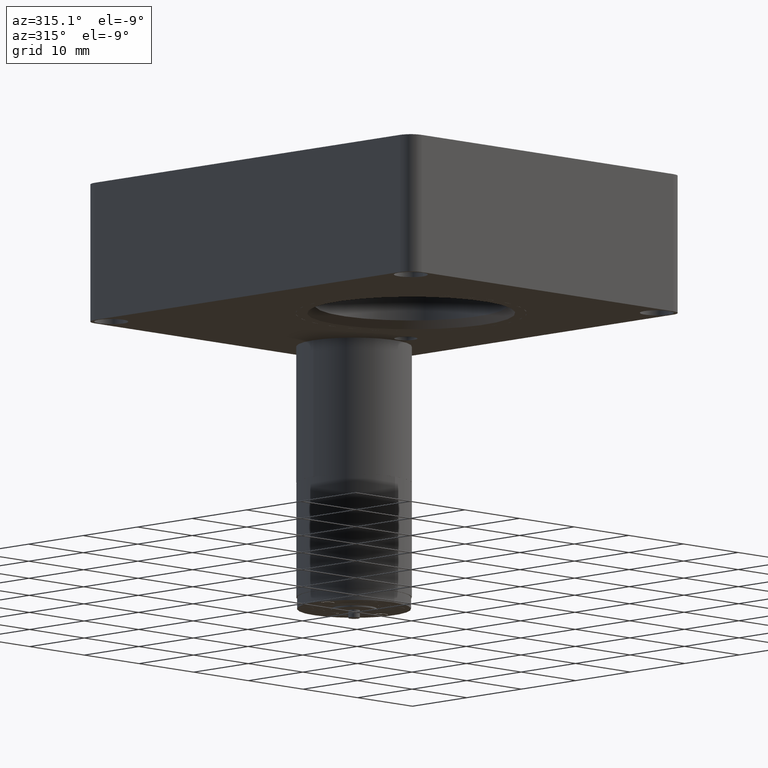
[diagram: clean part render]
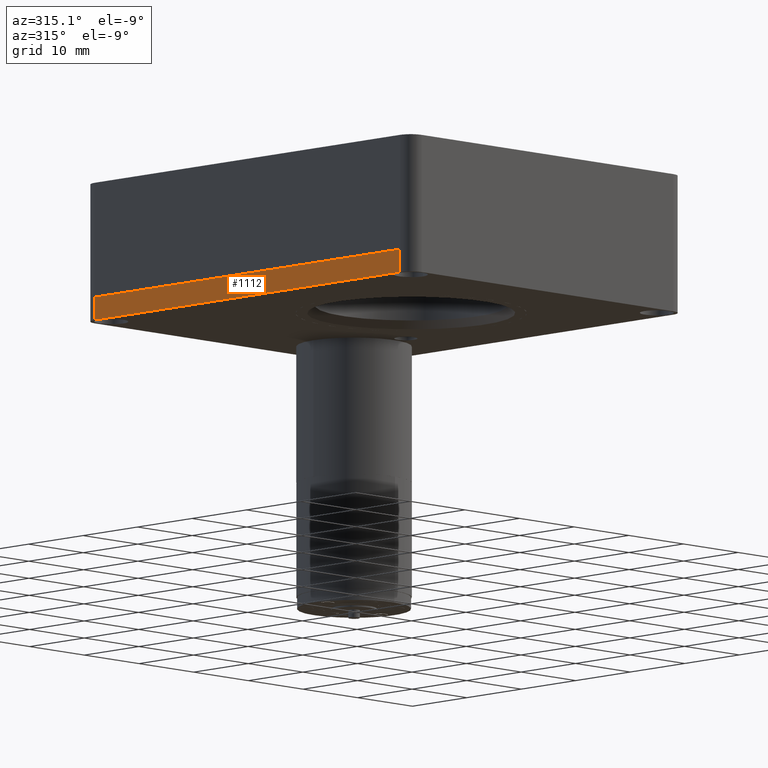
[diagram: same view with one face highlighted and labeled with its STEP entity id]
A machine part, auxiliary view. The second image highlights one B-rep face of the part: STEP entity #1112.
In plain terms, the highlighted planar face has unit normal (1, 0, 0).
Its self-contained STEP definition (entity closure, byte-faithful):
#482 = DIRECTION ( 'NONE',  ( 0.0000000000000000000, 0.0000000000000000000, -1.000000000000000000 ) ) ;
#794 = CARTESIAN_POINT ( 'NONE',  ( -2.775557561562891400E-014, 57.99999999999999300, 0.0000000000000000000 ) ) ;
#967 = LINE ( 'NONE', #9127, #1990 ) ;
#1112 = ADVANCED_FACE ( 'NONE', ( #3762 ), #3120, .F. ) ;
#1253 = ORIENTED_EDGE ( 'NONE', *, *, #1876, .F. ) ;
#1396 = ORIENTED_EDGE ( 'NONE', *, *, #7097, .T. ) ;
#1876 = EDGE_CURVE ( 'NONE', #8169, #10051, #9364, .T. ) ;
#1990 = VECTOR ( 'NONE', #7529, 1000.000000000000000 ) ;
#2418 = EDGE_CURVE ( 'NONE', #8169, #6064, #10412, .T. ) ;
#2518 = ORIENTED_EDGE ( 'NONE', *, *, #6633, .T. ) ;
#3120 = PLANE ( 'NONE',  #8378 ) ;
#3762 = FACE_OUTER_BOUND ( 'NONE', #9293, .T. ) ;
#3799 = CARTESIAN_POINT ( 'NONE',  ( -2.775557561562891400E-014, -1.040834085586084300E-014, 0.0000000000000000000 ) ) ;
#4273 = CARTESIAN_POINT ( 'NONE',  ( -2.775557561562891400E-014, 57.99999999999999300, -3.000000000000000000 ) ) ;
#4474 = ORIENTED_EDGE ( 'NONE', *, *, #2418, .T. ) ;
#4777 = DIRECTION ( 'NONE',  ( 1.000000000000000000, 0.0000000000000000000, 0.0000000000000000000 ) ) ;
#5838 = VERTEX_POINT ( 'NONE', #5858 ) ;
#5858 = CARTESIAN_POINT ( 'NONE',  ( -2.775557561562891400E-014, 1.999999999999988000, -3.000000000000000000 ) ) ;
#6064 = VERTEX_POINT ( 'NONE', #4273 ) ;
#6633 = EDGE_CURVE ( 'NONE', #5838, #10051, #9802, .T. ) ;
#7097 = EDGE_CURVE ( 'NONE', #6064, #5838, #967, .T. ) ;
#7215 = VECTOR ( 'NONE', #8677, 1000.000000000000000 ) ;
#7529 = DIRECTION ( 'NONE',  ( -0.0000000000000000000, -1.000000000000000000, -0.0000000000000000000 ) ) ;
#7648 = VECTOR ( 'NONE', #9800, 1000.000000000000000 ) ;
#7703 = CARTESIAN_POINT ( 'NONE',  ( -2.775557561562891400E-014, 57.99999999999999300, 0.0000000000000000000 ) ) ;
#8166 = CARTESIAN_POINT ( 'NONE',  ( -2.775557561562891400E-014, 1.999999999999988000, 0.0000000000000000000 ) ) ;
#8169 = VERTEX_POINT ( 'NONE', #794 ) ;
#8213 = VECTOR ( 'NONE', #482, 1000.000000000000000 ) ;
#8378 = AXIS2_PLACEMENT_3D ( 'NONE', #9652, #4777, #10494 ) ;
#8677 = DIRECTION ( 'NONE',  ( -0.0000000000000000000, -1.000000000000000000, -0.0000000000000000000 ) ) ;
#8822 = CARTESIAN_POINT ( 'NONE',  ( -2.775557561562891400E-014, 1.999999999999988000, 0.0000000000000000000 ) ) ;
#9127 = CARTESIAN_POINT ( 'NONE',  ( -2.775557561562891400E-014, -1.040834085586084300E-014, -3.000000000000000000 ) ) ;
#9293 = EDGE_LOOP ( 'NONE', ( #1396, #2518, #1253, #4474 ) ) ;
#9364 = LINE ( 'NONE', #3799, #7215 ) ;
#9652 = CARTESIAN_POINT ( 'NONE',  ( -2.775557561562891400E-014, -1.040834085586084300E-014, 0.0000000000000000000 ) ) ;
#9800 = DIRECTION ( 'NONE',  ( -0.0000000000000000000, -0.0000000000000000000, 1.000000000000000000 ) ) ;
#9802 = LINE ( 'NONE', #8166, #7648 ) ;
#10051 = VERTEX_POINT ( 'NONE', #8822 ) ;
#10412 = LINE ( 'NONE', #7703, #8213 ) ;
#10494 = DIRECTION ( 'NONE',  ( 0.0000000000000000000, 0.0000000000000000000, -1.000000000000000000 ) ) ;